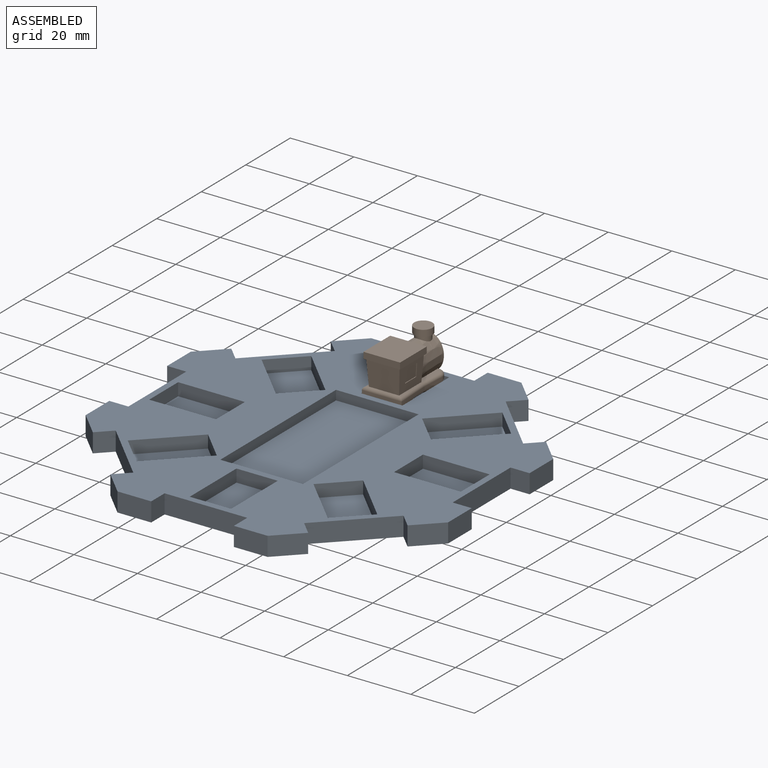
[diagram: assembled view]
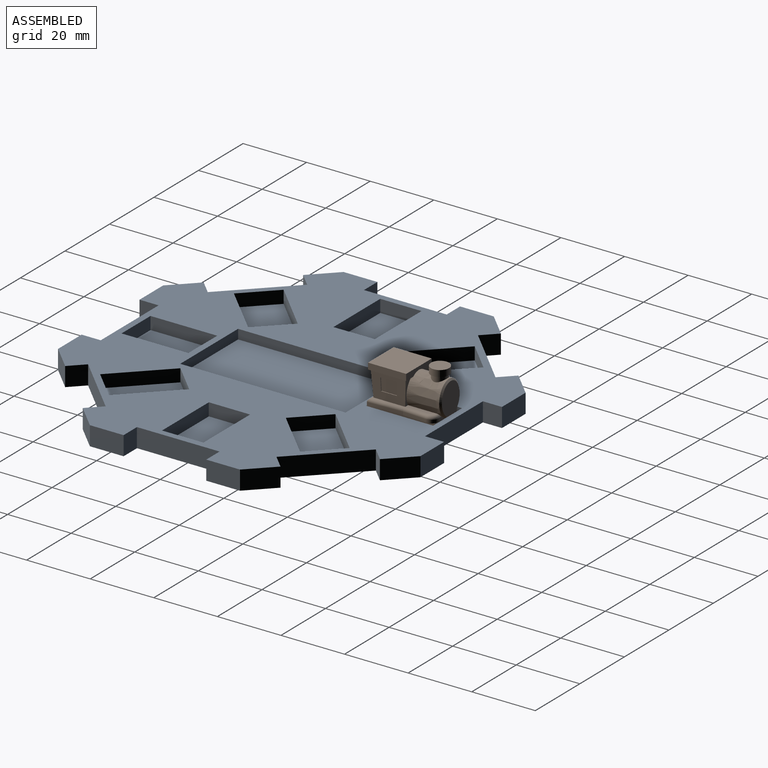
[diagram: assembled view, second angle]
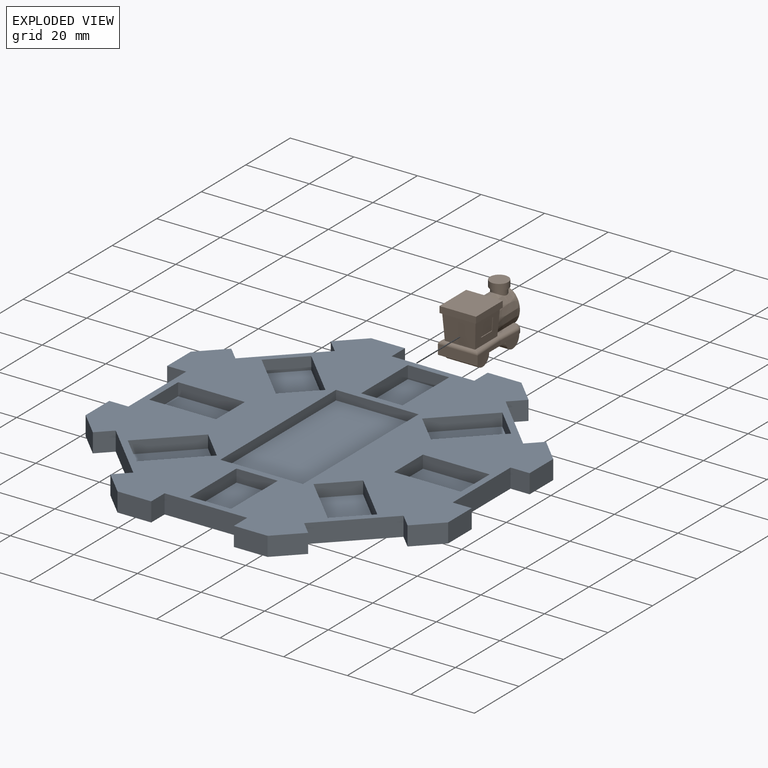
[diagram: exploded view]
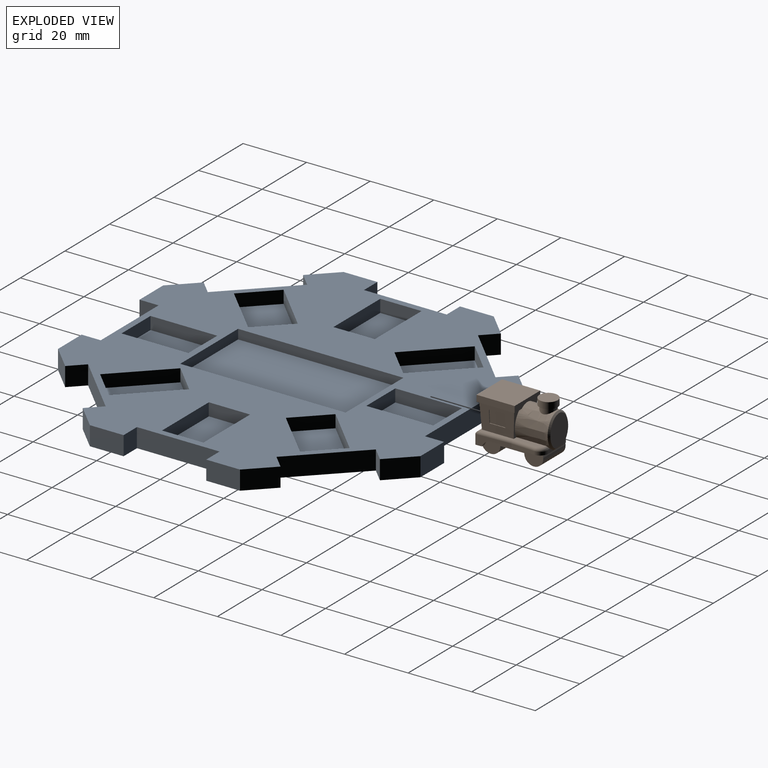
[diagram: exploded view, second angle]
ASSEMBLY  parts=2 mates=2
PART A: 87 faces, bbox 114x114x6 mm
  f0: plane 114x114mm, normal (0,0,1), area 5982.2mm2, adj f1,f2,f3,f4,f5,f6,f7,f8
  f1: plane 7.5x7.5mm, normal (0.71,-0.71,0), area 63.7mm2, adj f0,f10,f17,f24
  f2: plane 10.61x6mm, normal (1,0,0), area 63.7mm2, adj f0,f11,f17,f21
  f3: plane 7.5x7.5mm, normal (0.71,0.71,0), area 63.7mm2, adj f0,f12,f17,f18
  f4: plane 10.61x6mm, normal (0,1,0), area 63.7mm2, adj f0,f13,f17,f39
  f5: plane 7.5x7.5mm, normal (-0.71,0.71,0), area 63.7mm2, adj f0,f14,f17,f36
  f6: plane 10.61x6mm, normal (-1,0,0), area 63.7mm2, adj f0,f15,f17,f33
  f7: plane 7.5x7.5mm, normal (-0.71,-0.71,0), area 63.7mm2, adj f0,f16,f17,f30
  f8: plane 10.61x6mm, normal (0,-1,0), area 63.7mm2, adj f0,f9,f17,f27
  f9: plane 7.5x7.5mm, normal (0.71,-0.71,0), area 63.7mm2, adj f0,f8,f17,f26
  f10: plane 10.61x6mm, normal (1,0,0), area 63.7mm2, adj f0,f1,f17,f23
  f11: plane 7.5x7.5mm, normal (0.71,0.71,0), area 63.7mm2, adj f0,f2,f17,f20
  f12: plane 10.61x6mm, normal (0,1,0), area 63.7mm2, adj f0,f3,f17,f41
  f13: plane 7.5x7.5mm, normal (-0.71,0.71,0), area 63.7mm2, adj f0,f4,f17,f38
  f14: plane 10.61x6mm, normal (-1,0,0), area 63.7mm2, adj f0,f5,f17,f35
  f15: plane 7.5x7.5mm, normal (-0.71,-0.71,0), area 63.7mm2, adj f0,f6,f17,f32
  f16: plane 10.61x6mm, normal (0,-1,0), area 63.7mm2, adj f0,f7,f17,f29
  f17: plane 114x114mm, normal (0,0,-1), area 9518.2mm2, adj f1,f2,f3,f4,f5,f6,f7,f8
  f18: plane 6x4.24mm, normal (0.71,-0.71,0), area 36mm2, adj f0,f3,f17,f19
  f19: plane 18.38x18.38mm, normal (0.71,0.71,0), area 156mm2, adj f0,f17,f18,f20
  f20: plane 6x4.24mm, normal (-0.71,0.71,0), area 36mm2, adj f0,f11,f17,f19
  f21: plane 6x6mm, normal (0,-1,0), area 36mm2, adj f0,f2,f17,f22
  f22: plane 26x6mm, normal (1,0,0), area 156mm2, adj f0,f17,f21,f23
  f23: plane 6x6mm, normal (0,1,0), area 36mm2, adj f0,f10,f17,f22
  f24: plane 6x4.24mm, normal (-0.71,-0.71,0), area 36mm2, adj f0,f1,f17,f25
  f25: plane 18.38x18.38mm, normal (0.71,-0.71,0), area 156mm2, adj f0,f17,f24,f26
  f26: plane 6x4.24mm, normal (0.71,0.71,0), area 36mm2, adj f0,f9,f17,f25
  f27: plane 6x6mm, normal (-1,0,0), area 36mm2, adj f0,f8,f17,f28
  f28: plane 26x6mm, normal (0,-1,0), area 156mm2, adj f0,f17,f27,f29
  f29: plane 6x6mm, normal (1,0,0), area 36mm2, adj f0,f16,f17,f28
  f30: plane 6x4.24mm, normal (-0.71,0.71,0), area 36mm2, adj f0,f7,f17,f31
  f31: plane 18.38x18.38mm, normal (-0.71,-0.71,0), area 156mm2, adj f0,f17,f30,f32
  f32: plane 6x4.24mm, normal (0.71,-0.71,0), area 36mm2, adj f0,f15,f17,f31
  f33: plane 6x6mm, normal (0,1,0), area 36mm2, adj f0,f6,f17,f34
  f34: plane 26x6mm, normal (-1,0,0), area 156mm2, adj f0,f17,f33,f35
  f35: plane 6x6mm, normal (0,-1,0), area 36mm2, adj f0,f14,f17,f34
  f36: plane 6x4.24mm, normal (0.71,0.71,0), area 36mm2, adj f0,f5,f17,f37
  f37: plane 18.38x18.38mm, normal (-0.71,0.71,0), area 156mm2, adj f0,f17,f36,f38
  f38: plane 6x4.24mm, normal (-0.71,-0.71,0), area 36mm2, adj f0,f13,f17,f37
  f39: plane 6x6mm, normal (1,0,0), area 36mm2, adj f0,f4,f17,f40
  f40: plane 26x6mm, normal (0,1,0), area 156mm2, adj f0,f17,f39,f41
  f41: plane 6x6mm, normal (-1,0,0), area 36mm2, adj f0,f12,f17,f40
  f42: plane 26x3mm, normal (0,-1,0), area 78mm2, adj f0,f43,f45,f46
  f43: plane 52x3mm, normal (1,0,0), area 156mm2, adj f0,f42,f44,f46
  f44: plane 26x3mm, normal (0,1,0), area 78mm2, adj f0,f43,f45,f46
  f45: plane 52x3mm, normal (-1,0,0), area 156mm2, adj f0,f42,f44,f46
  f46: plane 52x26mm, normal (0,0,1), area 1352mm2, adj f42,f43,f44,f45
  f47: plane 13x4mm, normal (0,-1,0), area 52mm2, adj f0,f48,f50,f51
  f48: plane 21x4mm, normal (1,0,0), area 84mm2, adj f0,f47,f49,f51
  f49: plane 13x4mm, normal (0,1,0), area 52mm2, adj f0,f48,f50,f51
  f50: plane 21x4mm, normal (-1,0,0), area 84mm2, adj f0,f47,f49,f51
  f51: plane 21x13mm, normal (0,0,1), area 273mm2, adj f47,f48,f49,f50
  f52: plane 9.19x9.19mm, normal (0.71,-0.71,0), area 52mm2, adj f0,f53,f55,f56
  f53: plane 14.85x14.85mm, normal (0.71,0.71,0), area 84mm2, adj f0,f52,f54,f56
  f54: plane 9.19x9.19mm, normal (-0.71,0.71,0), area 52mm2, adj f0,f53,f55,f56
  f55: plane 14.85x14.85mm, normal (-0.71,-0.71,0), area 84mm2, adj f0,f52,f54,f56
  f56: plane 24.04x24.04mm, normal (0,0,1), area 273mm2, adj f52,f53,f54,f55
  f57: plane 13x4mm, normal (1,0,0), area 52mm2, adj f0,f58,f60,f61
  f58: plane 21x4mm, normal (0,1,0), area 84mm2, adj f0,f57,f59,f61
  f59: plane 13x4mm, normal (-1,0,0), area 52mm2, adj f0,f58,f60,f61
  f60: plane 21x4mm, normal (0,-1,0), area 84mm2, adj f0,f57,f59,f61
  f61: plane 21x13mm, normal (0,0,1), area 273mm2, adj f57,f58,f59,f60
  f62: plane 9.19x9.19mm, normal (0.71,0.71,0), area 52mm2, adj f0,f63,f65,f66
  f63: plane 14.85x14.85mm, normal (-0.71,0.71,0), area 84mm2, adj f0,f62,f64,f66
  f64: plane 9.19x9.19mm, normal (-0.71,-0.71,0), area 52mm2, adj f0,f63,f65,f66
  f65: plane 14.85x14.85mm, normal (0.71,-0.71,0), area 84mm2, adj f0,f62,f64,f66
  f66: plane 24.04x24.04mm, normal (0,0,1), area 273mm2, adj f62,f63,f64,f65
  f67: plane 13x4mm, normal (0,1,0), area 52mm2, adj f0,f68,f70,f71
  f68: plane 21x4mm, normal (-1,0,0), area 84mm2, adj f0,f67,f69,f71
  f69: plane 13x4mm, normal (0,-1,0), area 52mm2, adj f0,f68,f70,f71
  f70: plane 21x4mm, normal (1,0,0), area 84mm2, adj f0,f67,f69,f71
  f71: plane 21x13mm, normal (0,0,1), area 273mm2, adj f67,f68,f69,f70
  f72: plane 9.19x9.19mm, normal (-0.71,0.71,0), area 52mm2, adj f0,f73,f75,f76
  f73: plane 14.85x14.85mm, normal (-0.71,-0.71,0), area 84mm2, adj f0,f72,f74,f76
  f74: plane 9.19x9.19mm, normal (0.71,-0.71,0), area 52mm2, adj f0,f73,f75,f76
  f75: plane 14.85x14.85mm, normal (0.71,0.71,0), area 84mm2, adj f0,f72,f74,f76
  f76: plane 24.04x24.04mm, normal (0,0,1), area 273mm2, adj f72,f73,f74,f75
  f77: plane 13x4mm, normal (-1,0,0), area 52mm2, adj f0,f78,f80,f81
  f78: plane 21x4mm, normal (0,-1,0), area 84mm2, adj f0,f77,f79,f81
  f79: plane 13x4mm, normal (1,0,0), area 52mm2, adj f0,f78,f80,f81
  f80: plane 21x4mm, normal (0,1,0), area 84mm2, adj f0,f77,f79,f81
  f81: plane 21x13mm, normal (0,0,1), area 273mm2, adj f77,f78,f79,f80
  f82: plane 9.19x9.19mm, normal (-0.71,-0.71,0), area 52mm2, adj f0,f83,f85,f86
  f83: plane 14.85x14.85mm, normal (0.71,-0.71,0), area 84mm2, adj f0,f82,f84,f86
  f84: plane 9.19x9.19mm, normal (0.71,0.71,0), area 52mm2, adj f0,f83,f85,f86
  f85: plane 14.85x14.85mm, normal (-0.71,0.71,0), area 84mm2, adj f0,f82,f84,f86
  f86: plane 24.04x24.04mm, normal (0,0,1), area 273mm2, adj f82,f83,f84,f85
PART B: 60 faces, bbox 12.9x22.3x18.2 mm
  f0: cylinder r=3mm len=10mm, axis (-1,0,0), area 84.1mm2, adj f32,f33,f36,f59
  f1: plane 11x8mm, normal (1,0,-0.06), area 64.2mm2, adj f8,f12,f18,f19,f44,f54,f55,f56
  f2: plane 11x8mm, normal (-1,0,-0.06), area 64.2mm2, adj f7,f10,f12,f18,f42,f49,f50,f51
  f3: extruded ~11x10.5mm, area 218.1mm2, adj f5,f6,f10,f11,f12,f13,f19,f20
  f4: plane 9.58x8.03mm, normal (0,1,0), area 61.5mm2, adj f5,f48
  f5: bspline ~11x9mm, area 18.5mm2, adj f3,f4,f48
  f6: plane 9x1.65mm, normal (0,0,1), area 13mm2, adj f3,f10,f39,f40,f41,f42
  f7: plane 9.98x0.45mm, normal (0,0,1), area 2.3mm2, adj f2,f42,f43
  f8: plane 9.98x0.45mm, normal (0,0,1), area 2.3mm2, adj f1,f43,f44
  f9: plane 16.17x12.24mm, normal (0,0,-1), area 34.7mm2, adj f11,f22,f23,f24,f25,f26,f31,f32
  f10: plane 8.21x2.87mm, normal (0,1,-0.06), area 7.7mm2, adj f2,f3,f6,f12,f42
  f11: plane 3.62x1mm, normal (0,1,0), area 1.9mm2, adj f3,f9,f35,f47
  f12: plane 12x11.5mm, normal (0,0,-1), area 19.9mm2, adj f1,f2,f3,f10,f13,f14,f15,f16
  f13: plane 11.5x2mm, normal (0,1,0), area 19.5mm2, adj f3,f12,f14,f16,f17
  f14: plane 12x2mm, normal (-1,0,0), area 24mm2, adj f12,f13,f15,f17
  f15: plane 11.5x2mm, normal (0,-1,0), area 23mm2, adj f12,f14,f16,f17
  f16: plane 12x2mm, normal (1,0,0), area 24mm2, adj f12,f13,f15,f17
  f17: plane 12x11.5mm, normal (0,0,1), area 138mm2, adj f13,f14,f15,f16
  f18: plane 10.5x8mm, normal (0,-1,-0.06), area 80.2mm2, adj f1,f2,f12,f43
  f19: plane 8.21x2.88mm, normal (0,1,-0.06), area 7.7mm2, adj f1,f3,f12,f20,f44
  f20: plane 9x1.65mm, normal (0,0,1), area 13mm2, adj f3,f19,f44,f45,f46,f47
  f21: plane 12.5x3mm, normal (0,-1,0), area 37.5mm2, adj f22,f26,f36,f43
  f22: plane 11.03x3.03mm, normal (-1,0.05,0), area 16.5mm2, adj f9,f21,f23,f36,f37,f42
  f23: plane 7.38x1mm, normal (-1,-0.05,0), area 7.4mm2, adj f9,f22,f34,f41
  f24: plane 3.62x1mm, normal (0,1,0), area 1.9mm2, adj f3,f9,f34,f39
  f25: plane 7.38x1mm, normal (1,-0.05,0), area 7.4mm2, adj f9,f26,f35,f45
  f26: plane 11.03x3.03mm, normal (1,0.05,0), area 16.5mm2, adj f9,f21,f25,f36,f38,f44
  f27: cylinder r=2.38mm len=4.75mm, axis (0,0,1), area 27.3mm2, adj f3,f30
  f28: cylinder r=2.88mm len=5.75mm, axis (0,0,-1), area 36.1mm2, adj f29,f30
  f29: plane 5.75x5.75mm, normal (0,0,1), area 26mm2, adj f28
  f30: plane 5.75x5.75mm, normal (0,0,-1), area 8.2mm2, adj f27,f28
  f31: cylinder r=3mm len=10mm, axis (-1,0,0), area 104.4mm2, adj f9,f32,f33,f59
  f32: plane 19.33x4mm, normal (1,0,0), area 44.2mm2, adj f0,f9,f31,f36,f38,f59
  f33: plane 19.33x4mm, normal (-1,0,0), area 44.2mm2, adj f0,f9,f31,f36,f37,f59
  f34: cylinder r=2.5mm len=2.63mm, axis (0,0,1), area 4.1mm2, adj f9,f23,f24,f40
  f35: cylinder r=2.5mm len=2.63mm, axis (0,0,-1), area 4.1mm2, adj f9,f11,f25,f46
  f36: plane 12.5x2mm, normal (0,0,-1), area 16.5mm2, adj f0,f21,f22,f26,f32,f33,f37,f38
  f37: cylinder r=3mm len=2.83mm, axis (-1,0,0), area 4mm2, adj f9,f22,f33,f36
  f38: cylinder r=3mm len=2.83mm, axis (-1,0,0), area 4mm2, adj f9,f26,f32,f36
  f39: cylinder r=1mm len=1.03mm, axis (1,0,0), area 0.7mm2, adj f3,f6,f24,f40
  f40: torus R=1.5mm, axis (0,0,-1), area 5.4mm2, adj f6,f34,f39,f41
  f41: cylinder r=1mm len=7.47mm, axis (-0.05,1,0), area 11.6mm2, adj f6,f23,f40,f42
  f42: cylinder r=1mm len=11.09mm, axis (0.05,1,0), area 16.7mm2, adj f2,f6,f7,f10,f22,f41,f43
  f43: cylinder r=1mm len=12.5mm, axis (-1,0,0), area 18mm2, adj f7,f8,f18,f21,f42,f44
  f44: cylinder r=1mm len=11.09mm, axis (0.05,-1,0), area 16.7mm2, adj f1,f8,f19,f20,f26,f43,f45
  f45: cylinder r=1mm len=7.47mm, axis (-0.05,-1,0), area 11.6mm2, adj f20,f25,f44,f46
  f46: torus R=1.5mm, axis (0,0,-1), area 5.4mm2, adj f20,f35,f45,f47
  f47: cylinder r=1mm len=1.03mm, axis (1,0,0), area 0.7mm2, adj f3,f11,f20,f46
  f48: plane 3.99x1.24mm, normal (0,0.71,-0.71), area 4.3mm2, adj f3,f4,f5
  f49: plane 5x0.2mm, normal (0.06,0,-1), area 1mm2, adj f2,f50,f52,f53
  f50: plane 4x0.45mm, normal (0,-1,0), area 0.8mm2, adj f2,f49,f51,f53
  f51: plane 5x0.2mm, normal (-0.06,0,1), area 1mm2, adj f2,f50,f52,f53
  f52: plane 4x0.45mm, normal (0,1,0), area 0.8mm2, adj f2,f49,f51,f53
  f53: plane 5x3.99mm, normal (-1,0,-0.06), area 20mm2, adj f49,f50,f51,f52
  f54: plane 5x0.2mm, normal (-0.06,0,-1), area 1mm2, adj f1,f55,f57,f58
  f55: plane 4x0.45mm, normal (0,1,0), area 0.8mm2, adj f1,f54,f56,f58
  f56: plane 5x0.2mm, normal (0.06,0,1), area 1mm2, adj f1,f55,f57,f58
  f57: plane 4x0.45mm, normal (0,-1,0), area 0.8mm2, adj f1,f54,f56,f58
  f58: plane 5x3.99mm, normal (1,0,-0.06), area 20mm2, adj f54,f55,f56,f57
  f59: plane 10x7.5mm, normal (0,0,-1), area 75mm2, adj f0,f31,f32,f33
PLACE A t=(1.11,0.17,-3.71)mm fixed
PLACE B t=(1.11,34.17,14.29)mm
MATE planar B.f21 <-> A.f49  axis (0,-1,0) through (1.11,28.17,0.29)mm
MATE planar B.f9 <-> A.f0  axis (0,0,-1) through (1.11,42.31,2.29)mm
